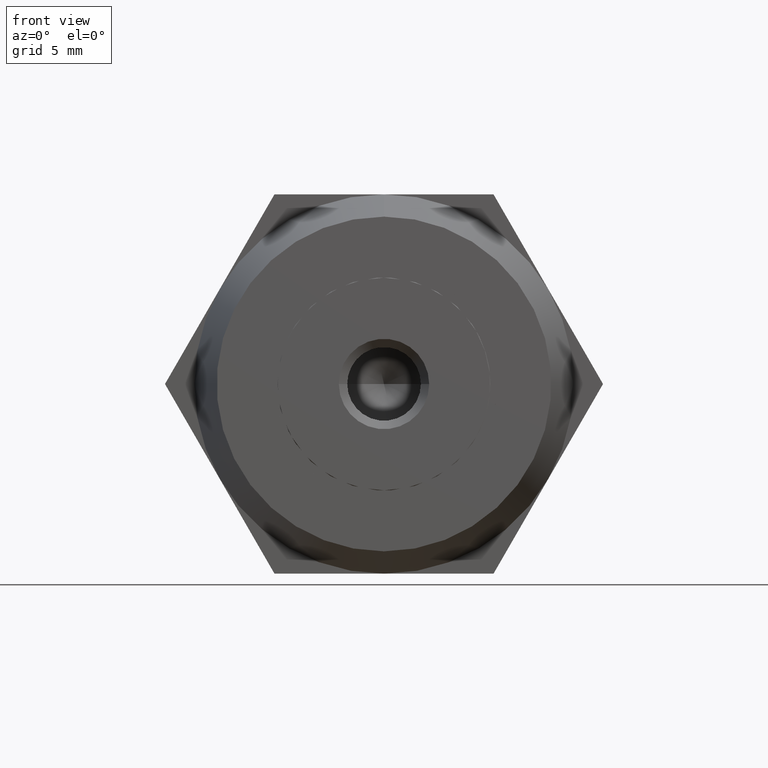
[diagram: clean part render]
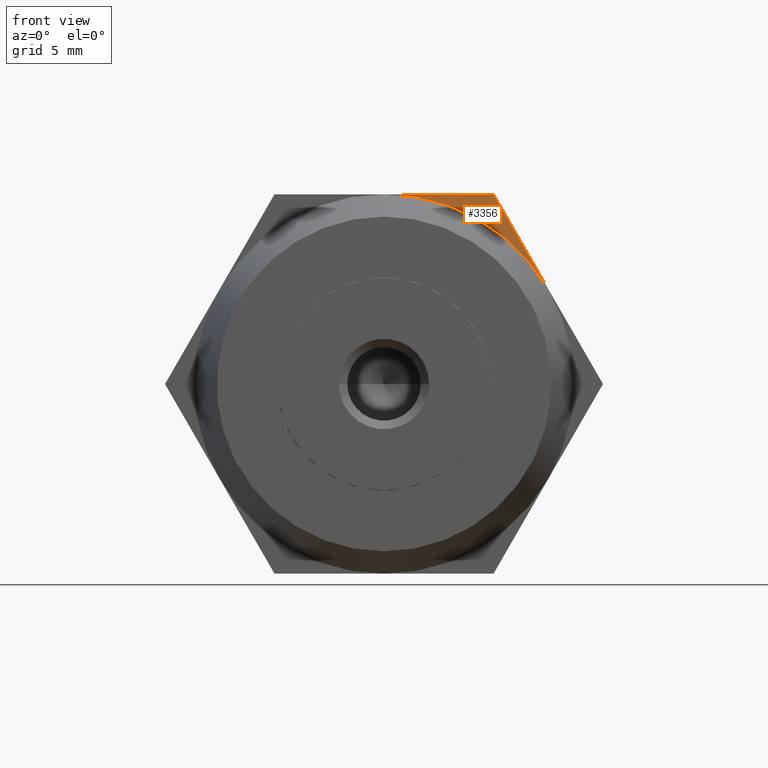
[diagram: same view with one face highlighted and labeled with its STEP entity id]
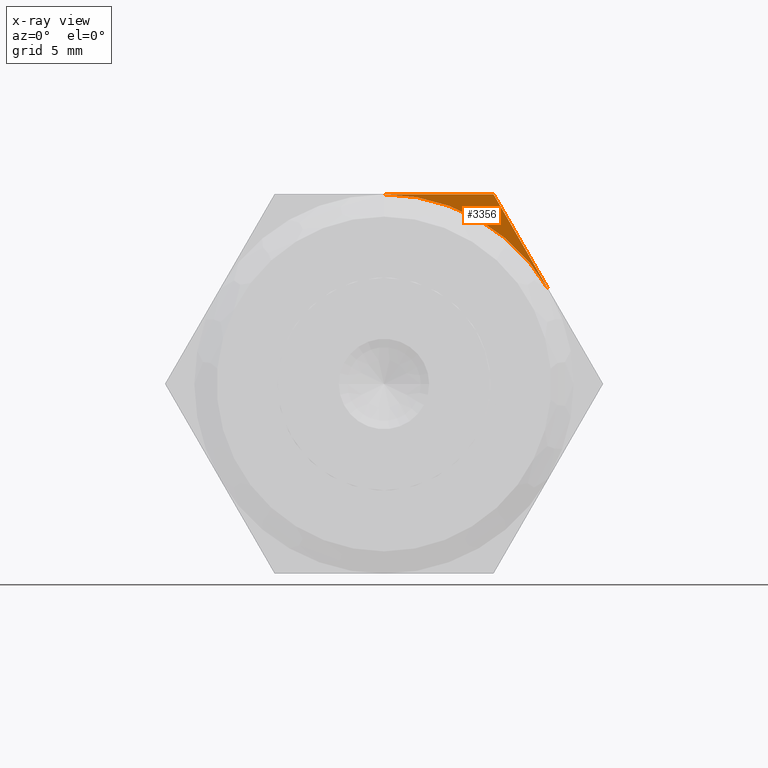
[diagram: x-ray of the same camera — body ghosted, the highlighted face saturated]
A machine part, front view. The second image highlights one B-rep face of the part: STEP entity #3356.
The next image is the same camera in x-ray: the body ghosted, the highlighted face saturated — about 0% of this face is hidden behind the body in this view.
In plain terms, the highlighted planar face has unit normal (0, 1, 0).
Its self-contained STEP definition (entity closure, byte-faithful):
#71 = DIRECTION ( 'NONE',  ( 0.4999999999999998900, 0.0000000000000000000, -0.8660254037844387100 ) ) ;
#251 = EDGE_CURVE ( 'NONE', #583, #898, #1130, .T. ) ;
#287 = CIRCLE ( 'NONE', #2941, 8.500000000000000000 ) ;
#314 = CARTESIAN_POINT ( 'NONE',  ( -1.502314598737160000E-015, -2.500000000000000000, 8.500000000000000000 ) ) ;
#356 = EDGE_LOOP ( 'NONE', ( #3325, #2670, #432 ) ) ;
#432 = ORIENTED_EDGE ( 'NONE', *, *, #3745, .F. ) ;
#583 = VERTEX_POINT ( 'NONE', #314 ) ;
#757 = VECTOR ( 'NONE', #2712, 1000.000000000000000 ) ;
#830 = DIRECTION ( 'NONE',  ( 0.0000000000000000000, 0.0000000000000000000, 1.000000000000000000 ) ) ;
#898 = VERTEX_POINT ( 'NONE', #2241 ) ;
#1091 = DIRECTION ( 'NONE',  ( 0.0000000000000000000, 1.000000000000000000, 0.0000000000000000000 ) ) ;
#1130 = LINE ( 'NONE', #2822, #757 ) ;
#1467 = DIRECTION ( 'NONE',  ( 0.0000000000000000000, 1.000000000000000000, 0.0000000000000000000 ) ) ;
#1510 = FACE_OUTER_BOUND ( 'NONE', #356, .T. ) ;
#1626 = VERTEX_POINT ( 'NONE', #3170 ) ;
#1804 = DIRECTION ( 'NONE',  ( 0.0000000000000000000, 0.0000000000000000000, 1.000000000000000000 ) ) ;
#1825 = VECTOR ( 'NONE', #71, 1000.000000000000000 ) ;
#1890 = CARTESIAN_POINT ( 'NONE',  ( 4.907477288111820700, -2.500000000000000000, 8.500000000000000000 ) ) ;
#2241 = CARTESIAN_POINT ( 'NONE',  ( 4.907477288111820700, -2.500000000000000000, 8.500000000000000000 ) ) ;
#2485 = EDGE_CURVE ( 'NONE', #583, #1626, #287, .T. ) ;
#2670 = ORIENTED_EDGE ( 'NONE', *, *, #2485, .T. ) ;
#2712 = DIRECTION ( 'NONE',  ( 1.000000000000000000, 0.0000000000000000000, 1.767428939690774800E-016 ) ) ;
#2713 = CARTESIAN_POINT ( 'NONE',  ( 0.0000000000000000000, -2.500000000000000000, 0.0000000000000000000 ) ) ;
#2740 = AXIS2_PLACEMENT_3D ( 'NONE', #3468, #1091, #830 ) ;
#2822 = CARTESIAN_POINT ( 'NONE',  ( -4.907477288111829600, -2.500000000000000000, 8.500000000000000000 ) ) ;
#2941 = AXIS2_PLACEMENT_3D ( 'NONE', #2713, #1467, #1804 ) ;
#3051 = LINE ( 'NONE', #1890, #1825 ) ;
#3170 = CARTESIAN_POINT ( 'NONE',  ( 7.361215932167730200, -2.500000000000000000, 4.250000000000000000 ) ) ;
#3325 = ORIENTED_EDGE ( 'NONE', *, *, #251, .F. ) ;
#3356 = ADVANCED_FACE ( 'NONE', ( #1510 ), #3504, .F. ) ;
#3468 = CARTESIAN_POINT ( 'NONE',  ( 0.0000000000000000000, -2.500000000000000000, 0.0000000000000000000 ) ) ;
#3504 = PLANE ( 'NONE',  #2740 ) ;
#3745 = EDGE_CURVE ( 'NONE', #898, #1626, #3051, .T. ) ;